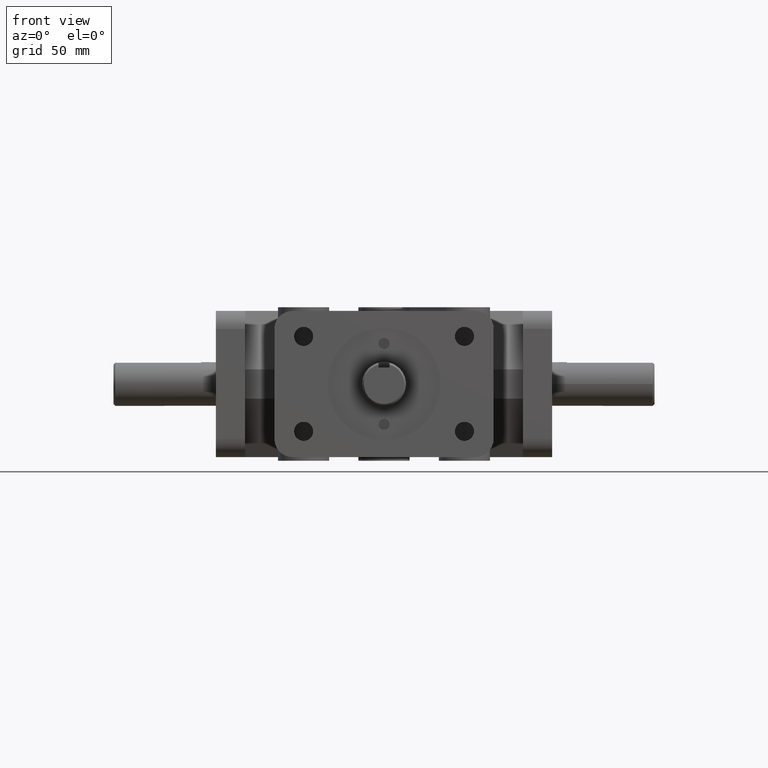
[diagram: clean part render]
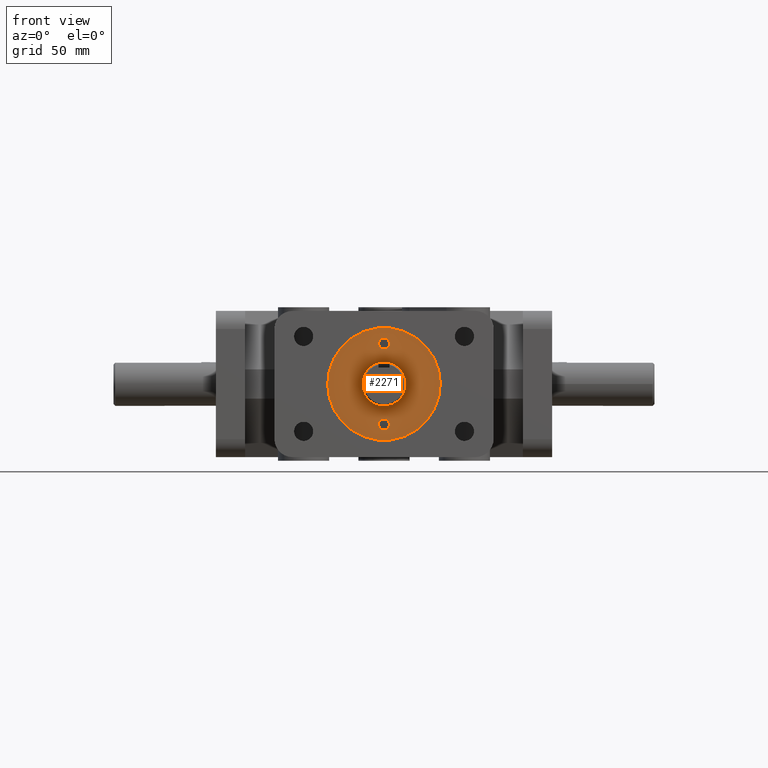
[diagram: same view with one face highlighted and labeled with its STEP entity id]
A machine part, front view. The second image highlights one B-rep face of the part: STEP entity #2271.
In plain terms, the highlighted planar face has unit normal (0, 1, 0).
Its self-contained STEP definition (entity closure, byte-faithful):
#519=FACE_BOUND('',#695,.T.);
#520=FACE_BOUND('',#696,.T.);
#521=FACE_BOUND('',#697,.T.);
#559=FACE_OUTER_BOUND('',#694,.T.);
#694=EDGE_LOOP('',(#1528));
#695=EDGE_LOOP('',(#1529));
#696=EDGE_LOOP('',(#1530));
#697=EDGE_LOOP('',(#1531));
#867=CIRCLE('',#2423,0.963);
#868=CIRCLE('',#2424,0.09375);
#869=CIRCLE('',#2425,0.09375);
#870=CIRCLE('',#2426,0.375);
#973=VERTEX_POINT('',#3361);
#974=VERTEX_POINT('',#3363);
#975=VERTEX_POINT('',#3365);
#976=VERTEX_POINT('',#3367);
#1194=EDGE_CURVE('',#973,#973,#867,.T.);
#1195=EDGE_CURVE('',#974,#974,#868,.T.);
#1196=EDGE_CURVE('',#975,#975,#869,.T.);
#1197=EDGE_CURVE('',#976,#976,#870,.T.);
#1528=ORIENTED_EDGE('',*,*,#1194,.T.);
#1529=ORIENTED_EDGE('',*,*,#1195,.T.);
#1530=ORIENTED_EDGE('',*,*,#1196,.T.);
#1531=ORIENTED_EDGE('',*,*,#1197,.T.);
#2190=PLANE('',#2422);
#2271=ADVANCED_FACE('',(#559,#519,#520,#521),#2190,.F.);
#2422=AXIS2_PLACEMENT_3D('',#3360,#2669,#2670);
#2423=AXIS2_PLACEMENT_3D('',#3362,#2671,#2672);
#2424=AXIS2_PLACEMENT_3D('',#3364,#2673,#2674);
#2425=AXIS2_PLACEMENT_3D('',#3366,#2675,#2676);
#2426=AXIS2_PLACEMENT_3D('',#3368,#2677,#2678);
#2669=DIRECTION('center_axis',(0.,1.,0.));
#2670=DIRECTION('ref_axis',(0.,0.,-1.));
#2671=DIRECTION('center_axis',(0.,-1.,0.));
#2672=DIRECTION('ref_axis',(1.,0.,0.));
#2673=DIRECTION('center_axis',(0.,1.,0.));
#2674=DIRECTION('ref_axis',(1.,0.,0.));
#2675=DIRECTION('center_axis',(0.,1.,0.));
#2676=DIRECTION('ref_axis',(1.,0.,0.));
#2677=DIRECTION('center_axis',(0.,1.,0.));
#2678=DIRECTION('ref_axis',(1.,0.,0.));
#3360=CARTESIAN_POINT('Origin',(0.0681818181818181,0.06,-1.66991775521233E-17));
#3361=CARTESIAN_POINT('',(-0.963,0.06,1.1793348675789E-16));
#3362=CARTESIAN_POINT('Origin',(0.,0.06,0.));
#3363=CARTESIAN_POINT('',(-0.09375,0.06,-0.69));
#3364=CARTESIAN_POINT('Origin',(0.,0.06,-0.69));
#3365=CARTESIAN_POINT('',(-0.09375,0.06,0.69));
#3366=CARTESIAN_POINT('Origin',(0.,0.06,0.69));
#3367=CARTESIAN_POINT('',(-0.375,0.06,-4.59242549680257E-17));
#3368=CARTESIAN_POINT('Origin',(0.,0.06,0.));